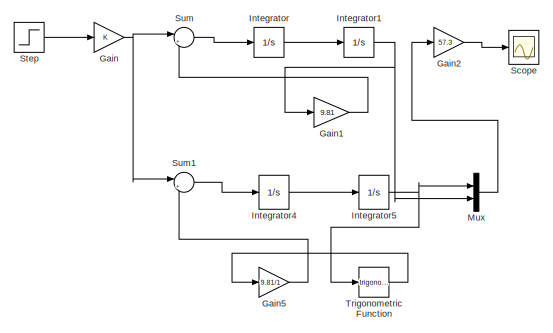
[diagram: root canvas - part 1/2, right side, full height]
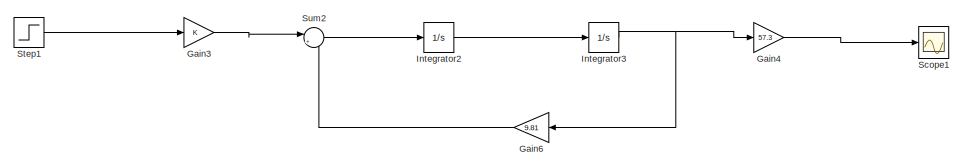
[diagram: root canvas - part 2/2, middle left region]
MODEL slx_a2223a4f2ee0
KIND model
CONFIG AbsTol = auto
CONFIG EnableMultiTasking = off
CONFIG FixedStep = auto
CONFIG MaxStep = auto
CONFIG MinStep = auto
CONFIG RelTol = 1e-3
CONFIG SampleTimeConstraint = Unconstrained
CONFIG SolverName = VariableStepAuto
CONFIG StartTime = 0.0
CONFIG StopTime = 10.0
BLOCK [Gain] Gain
BLOCK [Gain] Gain1
  Gain = 9.81
BLOCK [Gain] Gain2
  Gain = 57.3
BLOCK [Gain] Gain3
BLOCK [Gain] Gain4
  Gain = 57.3
BLOCK [Gain] Gain5
  Gain = 9.81/1
BLOCK [Gain] Gain6
  Gain = 9.81
BLOCK [Integrator] Integrator
BLOCK [Integrator] Integrator1
  InitialCondition = 0.85
BLOCK [Integrator] Integrator2
BLOCK [Integrator] Integrator3
  InitialCondition = 0.85
BLOCK [Integrator] Integrator4
BLOCK [Integrator] Integrator5
  InitialCondition = 0.90
BLOCK [Mux] Mux
  DisplayOption = bar
  Inputs = 2
BLOCK [Scope] Scope
  Floating = off
  NumInputPorts = 1
  ScopeSpecificationString = Simulink.scopes.TimeScopeBlockCfg('CurrentConfiguration', extmgr.ConfigurationSet(extmgr.Configuration('Core','General UI',true),extmgr.Configuration('Core','Source UI',true),extmgr.Configuration('Sources','WiredSimulink',true),extmgr.Configuration('Visuals','Time Domain',true,'SerializedDisplays',{struct('MinYLimReal','-49.80721','MaxYLimReal','62.83413','YLabelReal','','MinYLimMag','0.00000','Ma...<+1583ch>
BLOCK [Scope] Scope1
  Floating = off
  NumInputPorts = 1
  ScopeSpecificationString = Simulink.scopes.TimeScopeBlockCfg('CurrentConfiguration', extmgr.ConfigurationSet(extmgr.Configuration('Core','General UI',true),extmgr.Configuration('Core','Source UI',true),extmgr.Configuration('Sources','WiredSimulink',true,'DataLoggingVariableName','ScopeData1'),extmgr.Configuration('Visuals','Time Domain',true,'SerializedDisplays',{struct('MinYLimReal','-34.58071','MaxYLimReal','57.95897','YL...<+1492ch>
BLOCK [Step] Step
  SampleTime = 10
  Time = 0
BLOCK [Step] Step1
  After = 2
  Before = 2
  SampleTime = 10
  Time = 0
BLOCK [Sum] Sum
  Inputs = |+-
BLOCK [Sum] Sum1
  Inputs = |+-
BLOCK [Sum] Sum2
  Inputs = |+-
BLOCK [Trigonometry] Trigonometric Function
LINE Gain1:1 -> Sum:2
LINE Gain2:1 -> Scope:1
LINE Gain3:1 -> Sum2:1
LINE Gain4:1 -> Scope1:1
LINE Gain5:1 -> Sum1:2
LINE Gain6:1 -> Sum2:2
NET Gain:1 -> Sum1:1, Sum:1
NET Integrator1:1 -> Gain1:1, Mux:2
LINE Integrator2:1 -> Integrator3:1
NET Integrator3:1 -> Gain4:1, Gain6:1
LINE Integrator4:1 -> Integrator5:1
NET Integrator5:1 -> Mux:1, Trigonometric Function:1
LINE Integrator:1 -> Integrator1:1
LINE Mux:1 -> Gain2:1
LINE Step1:1 -> Gain3:1
LINE Step:1 -> Gain:1
LINE Sum1:1 -> Integrator4:1
LINE Sum2:1 -> Integrator2:1
LINE Sum:1 -> Integrator:1
LINE Trigonometric Function:1 -> Gain5:1
note: NET lines group one-source signal fan-out (src -> all destinations, sorted); 1:1 wires keep LINE
